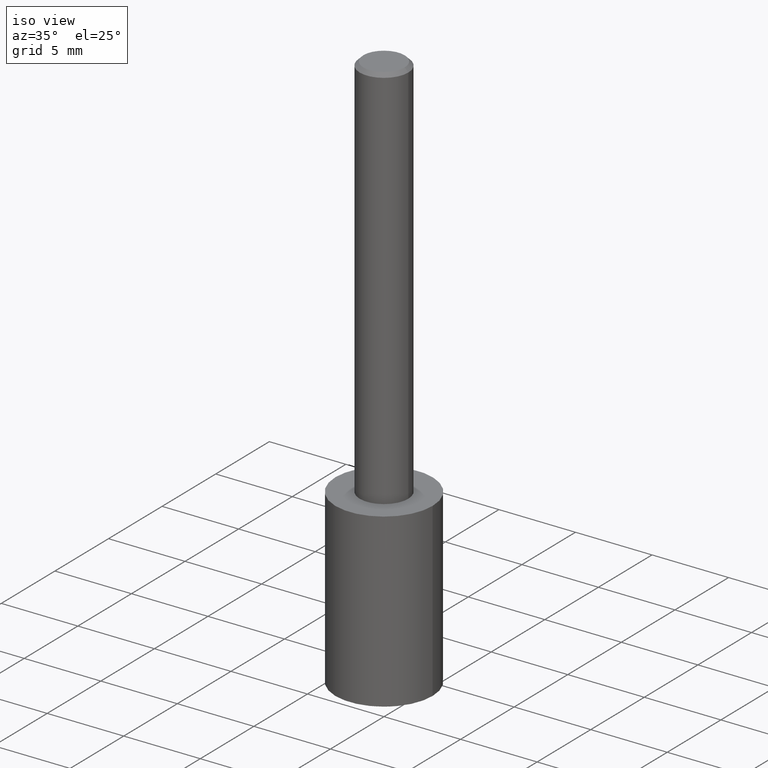
[diagram: clean part render]
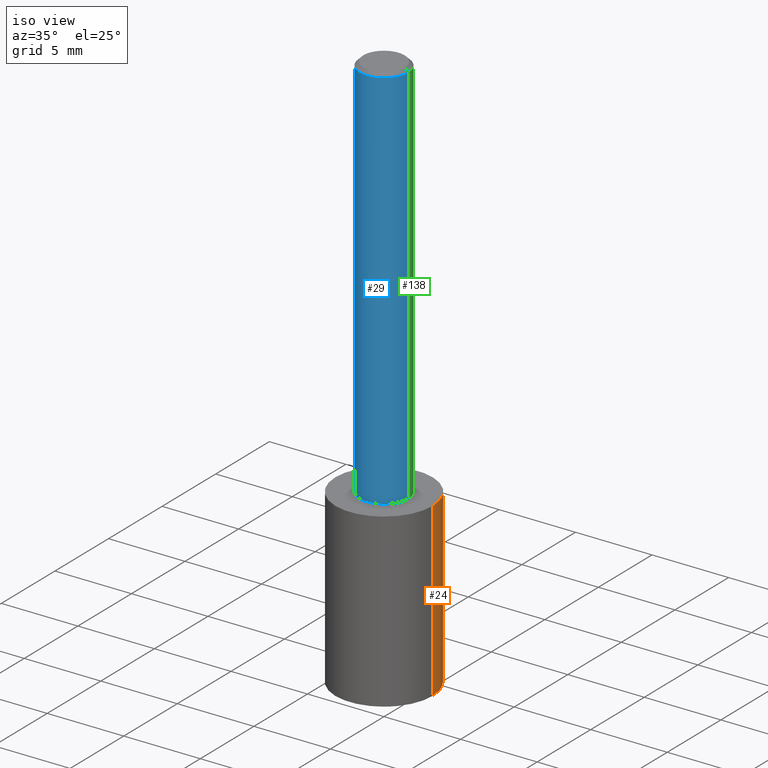
[diagram: same view with three faces highlighted in distinct colors, each labeled with its STEP entity id]
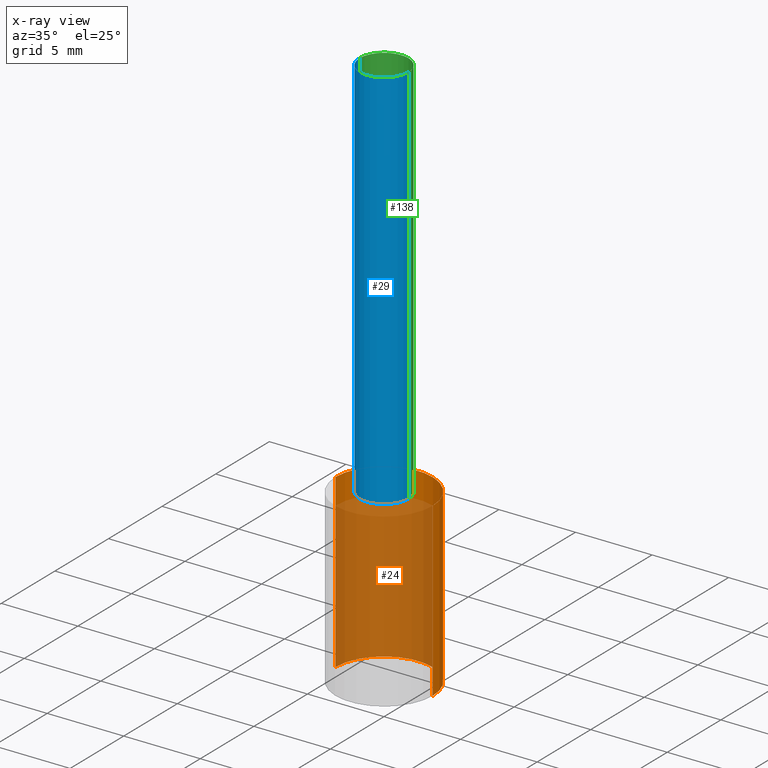
[diagram: x-ray of the same camera — body ghosted, the three highlighted faces saturated]
A machine part, iso view with three faces highlighted in distinct colors.
The next image is the same camera in x-ray (body ghosted, the three faces saturated) — at least one of them is partly hidden behind the body in this view.
Their STEP definitions:

[orange] entity #24 — the highlighted cylindrical surface (partial cylindrical patch) has radius 3.175 mm, axis along (-0, 0, 1).
#7 = EDGE_LOOP ( 'NONE', ( #117, #323, #294, #272 ) ) ;
#17 = CARTESIAN_POINT ( 'NONE',  ( 0.1250000000000000000, -4.364351673553930105E-15, -1.000000000000000222 ) ) ;
#21 = DIRECTION ( 'NONE',  ( 1.000000000000000000, -6.982962677686270655E-15, 0.000000000000000000 ) ) ;
#22 = VERTEX_POINT ( 'NONE', #244 ) ;
#23 = DIRECTION ( 'NONE',  ( -2.445468806185136877E-29, 3.491481338843145188E-15, 1.000000000000000000 ) ) ;
#24 = ADVANCED_FACE ( 'NONE', ( #63 ), #87, .T. ) ;
#25 = CIRCLE ( 'NONE', #212, 0.1250000000000000000 ) ;
#45 = EDGE_CURVE ( 'NONE', #22, #66, #25, .T. ) ;
#53 = CARTESIAN_POINT ( 'NONE',  ( -0.1249999999999999861, -4.145530527738615868E-15, -1.441711542730625517 ) ) ;
#58 = VECTOR ( 'NONE', #143, 39.37007874015748143 ) ;
#63 = FACE_OUTER_BOUND ( 'NONE', #7, .T. ) ;
#66 = VERTEX_POINT ( 'NONE', #295 ) ;
#77 = CARTESIAN_POINT ( 'NONE',  ( 0.1249999999999999861, -5.906579282149524440E-15, -1.441711542730625517 ) ) ;
#86 = DIRECTION ( 'NONE',  ( -2.445468806185136597E-29, 3.491481338843145583E-15, 1.000000000000000000 ) ) ;
#87 = CYLINDRICAL_SURFACE ( 'NONE', #167, 0.1250000000000000000 ) ;
#105 = LINE ( 'NONE', #328, #58 ) ;
#111 = VERTEX_POINT ( 'NONE', #53 ) ;
#113 = DIRECTION ( 'NONE',  ( -2.445468806185136597E-29, 3.491481338843145583E-15, 1.000000000000000000 ) ) ;
#117 = ORIENTED_EDGE ( 'NONE', *, *, #258, .T. ) ;
#128 = EDGE_CURVE ( 'NONE', #243, #22, #333, .T. ) ;
#130 = VECTOR ( 'NONE', #23, 39.37007874015748143 ) ;
#140 = CARTESIAN_POINT ( 'NONE',  ( 2.445468806185136877E-29, -3.491481338843145977E-15, -1.000000000000000222 ) ) ;
#143 = DIRECTION ( 'NONE',  ( -2.445468806185136877E-29, 3.491481338843145188E-15, 1.000000000000000000 ) ) ;
#167 = AXIS2_PLACEMENT_3D ( 'NONE', #325, #113, #220 ) ;
#205 = EDGE_CURVE ( 'NONE', #111, #66, #105, .T. ) ;
#212 = AXIS2_PLACEMENT_3D ( 'NONE', #140, #86, #271 ) ;
#220 = DIRECTION ( 'NONE',  ( 1.000000000000000000, -6.982962677686266711E-15, 0.000000000000000000 ) ) ;
#243 = VERTEX_POINT ( 'NONE', #77 ) ;
#244 = CARTESIAN_POINT ( 'NONE',  ( 0.1250000000000000000, -4.364351673553929316E-15, -1.000000000000000222 ) ) ;
#257 = DIRECTION ( 'NONE',  ( -2.445468806185136597E-29, 3.491481338843145583E-15, 1.000000000000000000 ) ) ;
#258 = EDGE_CURVE ( 'NONE', #243, #111, #293, .T. ) ;
#271 = DIRECTION ( 'NONE',  ( 1.000000000000000000, -6.982962677686266711E-15, 0.000000000000000000 ) ) ;
#272 = ORIENTED_EDGE ( 'NONE', *, *, #128, .F. ) ;
#285 = CARTESIAN_POINT ( 'NONE',  ( 3.525660605264793981E-29, -5.033708947438741890E-15, -1.441711542730625517 ) ) ;
#293 = CIRCLE ( 'NONE', #336, 0.1250000000000000000 ) ;
#294 = ORIENTED_EDGE ( 'NONE', *, *, #45, .F. ) ;
#295 = CARTESIAN_POINT ( 'NONE',  ( -0.1250000000000000000, -3.374416723440817912E-15, -1.000000000000000222 ) ) ;
#323 = ORIENTED_EDGE ( 'NONE', *, *, #205, .T. ) ;
#325 = CARTESIAN_POINT ( 'NONE',  ( 2.445468806185137438E-29, -3.491481338843146371E-15, -1.000000000000000222 ) ) ;
#328 = CARTESIAN_POINT ( 'NONE',  ( -0.1250000000000000000, -2.603302919143021534E-15, -1.000000000000000222 ) ) ;
#333 = LINE ( 'NONE', #17, #130 ) ;
#336 = AXIS2_PLACEMENT_3D ( 'NONE', #285, #257, #21 ) ;

[blue] entity #29 — the highlighted cylindrical surface (edge-blend (fillet) strip) has radius 1.5875 mm, axis along (-0, 0, 1).
#12 = ORIENTED_EDGE ( 'NONE', *, *, #98, .F. ) ;
#13 = ORIENTED_EDGE ( 'NONE', *, *, #292, .T. ) ;
#14 = CARTESIAN_POINT ( 'NONE',  ( 0.06250000000000012490, -3.927916506198539224E-15, -1.000000000000000222 ) ) ;
#29 = ADVANCED_FACE ( 'NONE', ( #161 ), #91, .T. ) ;
#30 = CIRCLE ( 'NONE', #218, 0.06250000000000000000 ) ;
#37 = ORIENTED_EDGE ( 'NONE', *, *, #290, .T. ) ;
#61 = DIRECTION ( 'NONE',  ( -2.445468806185136597E-29, 3.491481338843145583E-15, 1.000000000000000000 ) ) ;
#62 = LINE ( 'NONE', #162, #79 ) ;
#79 = VECTOR ( 'NONE', #245, 39.37007874015748143 ) ;
#88 = VECTOR ( 'NONE', #178, 39.37007874015748143 ) ;
#91 = CYLINDRICAL_SURFACE ( 'NONE', #185, 0.06250000000000006939 ) ;
#92 = VERTEX_POINT ( 'NONE', #260 ) ;
#98 = EDGE_CURVE ( 'NONE', #134, #193, #173, .T. ) ;
#125 = DIRECTION ( 'NONE',  ( 1.000000000000000000, -6.982962677686266711E-15, 0.000000000000000000 ) ) ;
#134 = VERTEX_POINT ( 'NONE', #179 ) ;
#153 = CARTESIAN_POINT ( 'NONE',  ( 2.292627005798582375E-31, -3.273263755165473266E-17, -0.009375000000000069042 ) ) ;
#161 = FACE_OUTER_BOUND ( 'NONE', #200, .T. ) ;
#162 = CARTESIAN_POINT ( 'NONE',  ( 0.06250000000000006939, -4.364351673553921624E-16, 3.047610484872463374E-30 ) ) ;
#165 = CARTESIAN_POINT ( 'NONE',  ( 0.000000000000000000, 0.000000000000000000, 0.000000000000000000 ) ) ;
#173 = LINE ( 'NONE', #227, #88 ) ;
#176 = CARTESIAN_POINT ( 'NONE',  ( -0.06250000000000000000, -1.318017778347336672E-15, -0.009375000000000069042 ) ) ;
#178 = DIRECTION ( 'NONE',  ( -2.445468806185136877E-29, 3.491481338843145188E-15, 1.000000000000000000 ) ) ;
#179 = CARTESIAN_POINT ( 'NONE',  ( -0.06250000000000012490, -1.318017778347335489E-15, -1.000000000000000222 ) ) ;
#185 = AXIS2_PLACEMENT_3D ( 'NONE', #165, #61, #276 ) ;
#189 = DIRECTION ( 'NONE',  ( -2.445468806185136597E-29, 3.491481338843145583E-15, 1.000000000000000000 ) ) ;
#190 = ORIENTED_EDGE ( 'NONE', *, *, #192, .F. ) ;
#192 = EDGE_CURVE ( 'NONE', #193, #92, #30, .T. ) ;
#193 = VERTEX_POINT ( 'NONE', #176 ) ;
#200 = EDGE_LOOP ( 'NONE', ( #12, #37, #13, #190 ) ) ;
#218 = AXIS2_PLACEMENT_3D ( 'NONE', #153, #262, #125 ) ;
#227 = CARTESIAN_POINT ( 'NONE',  ( -0.06250000000000006939, 4.440892098500631092E-16, -3.074334431409319267E-30 ) ) ;
#240 = AXIS2_PLACEMENT_3D ( 'NONE', #322, #189, #300 ) ;
#245 = DIRECTION ( 'NONE',  ( -2.445468806185136877E-29, 3.491481338843145188E-15, 1.000000000000000000 ) ) ;
#246 = VERTEX_POINT ( 'NONE', #14 ) ;
#260 = CARTESIAN_POINT ( 'NONE',  ( 0.06250000000000000000, -4.691678049070464390E-16, -0.009375000000000069042 ) ) ;
#262 = DIRECTION ( 'NONE',  ( -2.445468806185136597E-29, 3.491481338843145583E-15, 1.000000000000000000 ) ) ;
#276 = DIRECTION ( 'NONE',  ( 1.000000000000000000, -6.982962677686266711E-15, 4.876176775795935793E-29 ) ) ;
#284 = CIRCLE ( 'NONE', #240, 0.06250000000000012490 ) ;
#290 = EDGE_CURVE ( 'NONE', #134, #246, #284, .T. ) ;
#292 = EDGE_CURVE ( 'NONE', #246, #92, #62, .T. ) ;
#300 = DIRECTION ( 'NONE',  ( 1.000000000000000000, -6.982962677686264344E-15, 0.000000000000000000 ) ) ;
#322 = CARTESIAN_POINT ( 'NONE',  ( 2.445468806185137438E-29, -3.491481338843146371E-15, -1.000000000000000222 ) ) ;

[green] entity #138 — the highlighted cylindrical surface (edge-blend (fillet) strip) has radius 1.5875 mm, axis along (-0, 0, 1).
#3 = EDGE_CURVE ( 'NONE', #246, #134, #335, .T. ) ;
#4 = EDGE_LOOP ( 'NONE', ( #326, #301, #225, #144 ) ) ;
#14 = CARTESIAN_POINT ( 'NONE',  ( 0.06250000000000012490, -3.927916506198539224E-15, -1.000000000000000222 ) ) ;
#32 = CARTESIAN_POINT ( 'NONE',  ( 2.292627005798582375E-31, -3.273263755165473266E-17, -0.009375000000000069042 ) ) ;
#50 = AXIS2_PLACEMENT_3D ( 'NONE', #32, #81, #195 ) ;
#62 = LINE ( 'NONE', #162, #79 ) ;
#69 = DIRECTION ( 'NONE',  ( -2.445468806185136597E-29, 3.491481338843145583E-15, 1.000000000000000000 ) ) ;
#74 = EDGE_CURVE ( 'NONE', #92, #193, #107, .T. ) ;
#79 = VECTOR ( 'NONE', #245, 39.37007874015748143 ) ;
#81 = DIRECTION ( 'NONE',  ( -2.445468806185136597E-29, 3.491481338843145583E-15, 1.000000000000000000 ) ) ;
#82 = CARTESIAN_POINT ( 'NONE',  ( 0.000000000000000000, 0.000000000000000000, 0.000000000000000000 ) ) ;
#88 = VECTOR ( 'NONE', #178, 39.37007874015748143 ) ;
#92 = VERTEX_POINT ( 'NONE', #260 ) ;
#98 = EDGE_CURVE ( 'NONE', #134, #193, #173, .T. ) ;
#107 = CIRCLE ( 'NONE', #50, 0.06250000000000000000 ) ;
#109 = CARTESIAN_POINT ( 'NONE',  ( 2.445468806185137438E-29, -3.491481338843146371E-15, -1.000000000000000222 ) ) ;
#134 = VERTEX_POINT ( 'NONE', #179 ) ;
#138 = ADVANCED_FACE ( 'NONE', ( #331 ), #175, .T. ) ;
#144 = ORIENTED_EDGE ( 'NONE', *, *, #292, .F. ) ;
#162 = CARTESIAN_POINT ( 'NONE',  ( 0.06250000000000006939, -4.364351673553921624E-16, 3.047610484872463374E-30 ) ) ;
#168 = DIRECTION ( 'NONE',  ( 1.000000000000000000, -6.982962677686264344E-15, 0.000000000000000000 ) ) ;
#173 = LINE ( 'NONE', #227, #88 ) ;
#175 = CYLINDRICAL_SURFACE ( 'NONE', #180, 0.06250000000000006939 ) ;
#176 = CARTESIAN_POINT ( 'NONE',  ( -0.06250000000000000000, -1.318017778347336672E-15, -0.009375000000000069042 ) ) ;
#178 = DIRECTION ( 'NONE',  ( -2.445468806185136877E-29, 3.491481338843145188E-15, 1.000000000000000000 ) ) ;
#179 = CARTESIAN_POINT ( 'NONE',  ( -0.06250000000000012490, -1.318017778347335489E-15, -1.000000000000000222 ) ) ;
#180 = AXIS2_PLACEMENT_3D ( 'NONE', #82, #203, #315 ) ;
#193 = VERTEX_POINT ( 'NONE', #176 ) ;
#195 = DIRECTION ( 'NONE',  ( 1.000000000000000000, -6.982962677686266711E-15, 0.000000000000000000 ) ) ;
#203 = DIRECTION ( 'NONE',  ( -2.445468806185136597E-29, 3.491481338843145583E-15, 1.000000000000000000 ) ) ;
#209 = AXIS2_PLACEMENT_3D ( 'NONE', #109, #69, #168 ) ;
#225 = ORIENTED_EDGE ( 'NONE', *, *, #74, .F. ) ;
#227 = CARTESIAN_POINT ( 'NONE',  ( -0.06250000000000006939, 4.440892098500631092E-16, -3.074334431409319267E-30 ) ) ;
#245 = DIRECTION ( 'NONE',  ( -2.445468806185136877E-29, 3.491481338843145188E-15, 1.000000000000000000 ) ) ;
#246 = VERTEX_POINT ( 'NONE', #14 ) ;
#260 = CARTESIAN_POINT ( 'NONE',  ( 0.06250000000000000000, -4.691678049070464390E-16, -0.009375000000000069042 ) ) ;
#292 = EDGE_CURVE ( 'NONE', #246, #92, #62, .T. ) ;
#301 = ORIENTED_EDGE ( 'NONE', *, *, #98, .T. ) ;
#315 = DIRECTION ( 'NONE',  ( 1.000000000000000000, -6.982962677686266711E-15, 4.876176775795935793E-29 ) ) ;
#326 = ORIENTED_EDGE ( 'NONE', *, *, #3, .T. ) ;
#331 = FACE_OUTER_BOUND ( 'NONE', #4, .T. ) ;
#335 = CIRCLE ( 'NONE', #209, 0.06250000000000012490 ) ;